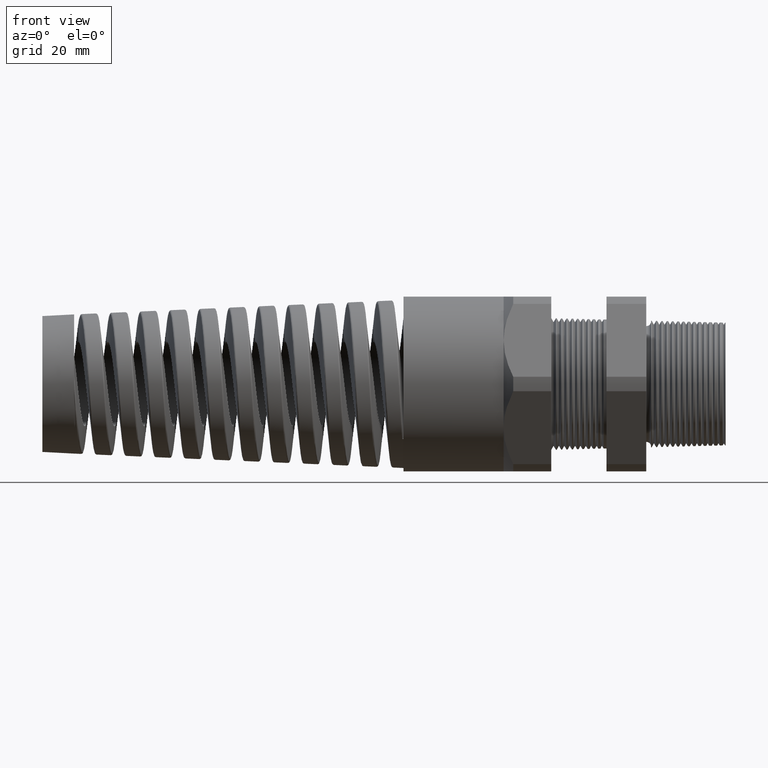
[diagram: clean part render]
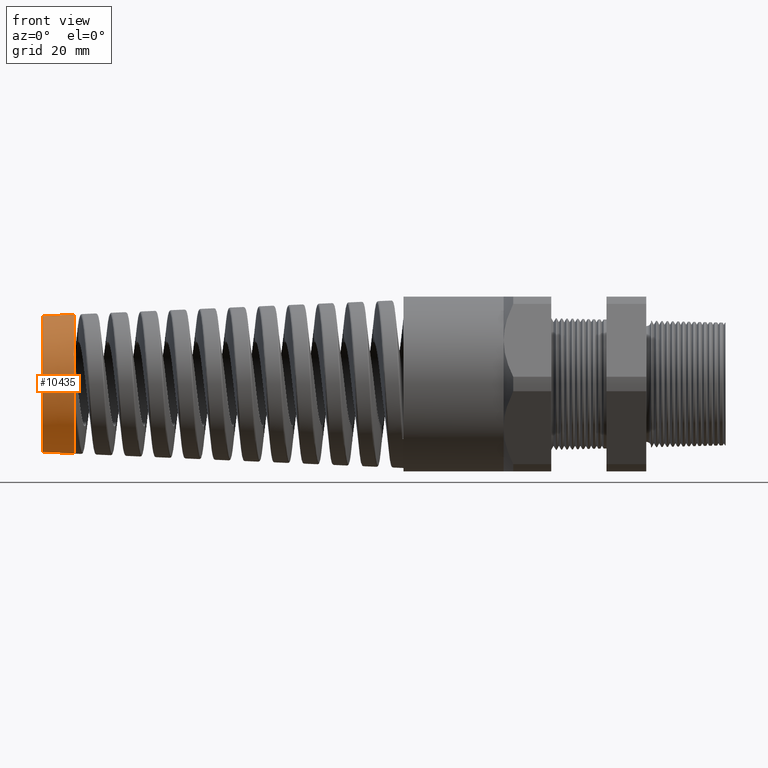
[diagram: same view with one face highlighted and labeled with its STEP entity id]
A machine part, front view. The second image highlights one B-rep face of the part: STEP entity #10435.
In plain terms, the highlighted conical surface has half-angle 3 deg.
Its self-contained STEP definition (entity closure, byte-faithful):
#9942 = EDGE_CURVE ( 'NONE', #9943, #10217, #15825, .T. ) ;
#9943 = VERTEX_POINT ( 'NONE', #15820 ) ;
#10217 = VERTEX_POINT ( 'NONE', #18098 ) ;
#10415 = ORIENTED_EDGE ( 'NONE', *, *, #10416, .T. ) ;
#10416 = EDGE_CURVE ( 'NONE', #9943, #10417, #19846, .T. ) ;
#10417 = VERTEX_POINT ( 'NONE', #19841 ) ;
#10418 = ORIENTED_EDGE ( 'NONE', *, *, #10419, .F. ) ;
#10419 = EDGE_CURVE ( 'NONE', #10440, #10417, #19840, .T. ) ;
#10435 = ADVANCED_FACE ( 'NONE', ( #19914 ), #19907, .T. ) ;
#10436 = EDGE_LOOP ( 'NONE', ( #10437, #10441, #10443, #10415, #10418 ) ) ;
#10437 = ORIENTED_EDGE ( 'NONE', *, *, #10438, .F. ) ;
#10438 = EDGE_CURVE ( 'NONE', #10439, #10440, #19903, .T. ) ;
#10439 = VERTEX_POINT ( 'NONE', #19899 ) ;
#10440 = VERTEX_POINT ( 'NONE', #19898 ) ;
#10441 = ORIENTED_EDGE ( 'NONE', *, *, #10442, .T. ) ;
#10442 = EDGE_CURVE ( 'NONE', #10439, #10217, #19897, .T. ) ;
#10443 = ORIENTED_EDGE ( 'NONE', *, *, #9942, .F. ) ;
#15817 = DIRECTION ( 'NONE',  ( 1.000000000000000000, 0.0000000000000000000, 0.0000000000000000000 ) ) ;
#15818 = CARTESIAN_POINT ( 'NONE',  ( -4.564000000000000900, 0.0000000000000000000, 0.0000000000000000000 ) ) ;
#15819 = AXIS2_PLACEMENT_3D ( 'NONE', #15818, #15817, #15893 ) ;
#15820 = CARTESIAN_POINT ( 'NONE',  ( -4.564000000000000900, -0.5157558011495030300, -0.04284913461783995000 ) ) ;
#15825 = CIRCLE ( 'NONE', #15819, 0.5175326992155734300 ) ;
#15893 = DIRECTION ( 'NONE',  ( 0.0000000000000000000, 0.0000000000000000000, -1.000000000000000000 ) ) ;
#18098 = CARTESIAN_POINT ( 'NONE',  ( -4.564000000000000900, -6.337947635478577700E-017, -0.5175326992150964800 ) ) ;
#19837 = DIRECTION ( 'NONE',  ( 0.9986295347545738300, 0.0000000000000000000, 0.05233595624294395300 ) ) ;
#19838 = VECTOR ( 'NONE', #19837, 39.37007874015748900 ) ;
#19839 = CARTESIAN_POINT ( 'NONE',  ( -4.564000000000000900, 0.0000000000000000000, 0.5175326992150964800 ) ) ;
#19840 = LINE ( 'NONE', #19839, #19838 ) ;
#19841 = CARTESIAN_POINT ( 'NONE',  ( -4.564000000000000900, 0.0000000000000000000, 0.5175326992150964800 ) ) ;
#19842 = DIRECTION ( 'NONE',  ( 0.0000000000000000000, 0.0000000000000000000, 1.000000000000000000 ) ) ;
#19843 = DIRECTION ( 'NONE',  ( -1.000000000000000000, 0.0000000000000000000, 0.0000000000000000000 ) ) ;
#19844 = CARTESIAN_POINT ( 'NONE',  ( -4.564000000000000900, 0.0000000000000000000, 0.0000000000000000000 ) ) ;
#19845 = AXIS2_PLACEMENT_3D ( 'NONE', #19844, #19843, #19842 ) ;
#19846 = CIRCLE ( 'NONE', #19845, 0.5175326992150964800 ) ;
#19894 = DIRECTION ( 'NONE',  ( 0.9986295347545738300, -6.409306129323724800E-018, -0.05233595624294395300 ) ) ;
#19895 = VECTOR ( 'NONE', #19894, 39.37007874015748900 ) ;
#19896 = CARTESIAN_POINT ( 'NONE',  ( -4.564000000000000900, -6.337947635478577700E-017, -0.5175326992150964800 ) ) ;
#19897 = LINE ( 'NONE', #19896, #19895 ) ;
#19898 = CARTESIAN_POINT ( 'NONE',  ( -4.800220472440946300, 0.0000000000000000000, 0.5051529088332756800 ) ) ;
#19899 = CARTESIAN_POINT ( 'NONE',  ( -4.800220472440946300, -6.262143282152518100E-017, -0.5051529088332757900 ) ) ;
#19900 = DIRECTION ( 'NONE',  ( 0.0000000000000000000, 0.0000000000000000000, 1.000000000000000000 ) ) ;
#19901 = DIRECTION ( 'NONE',  ( -1.000000000000000000, 0.0000000000000000000, 0.0000000000000000000 ) ) ;
#19902 = AXIS2_PLACEMENT_3D ( 'NONE', #19908, #19901, #19900 ) ;
#19903 = CIRCLE ( 'NONE', #19902, 0.5051529088332756800 ) ;
#19904 = DIRECTION ( 'NONE',  ( 0.0000000000000000000, 0.0000000000000000000, 1.000000000000000000 ) ) ;
#19905 = DIRECTION ( 'NONE',  ( 1.000000000000000000, 0.0000000000000000000, 0.0000000000000000000 ) ) ;
#19906 = AXIS2_PLACEMENT_3D ( 'NONE', #19909, #19905, #19904 ) ;
#19907 = CONICAL_SURFACE ( 'NONE', #19906, 0.5175326992150964800, 0.05235987755983000100 ) ;
#19908 = CARTESIAN_POINT ( 'NONE',  ( -4.800220472440946300, 0.0000000000000000000, 0.0000000000000000000 ) ) ;
#19909 = CARTESIAN_POINT ( 'NONE',  ( -4.564000000000000900, 0.0000000000000000000, 0.0000000000000000000 ) ) ;
#19914 = FACE_OUTER_BOUND ( 'NONE', #10436, .T. ) ;